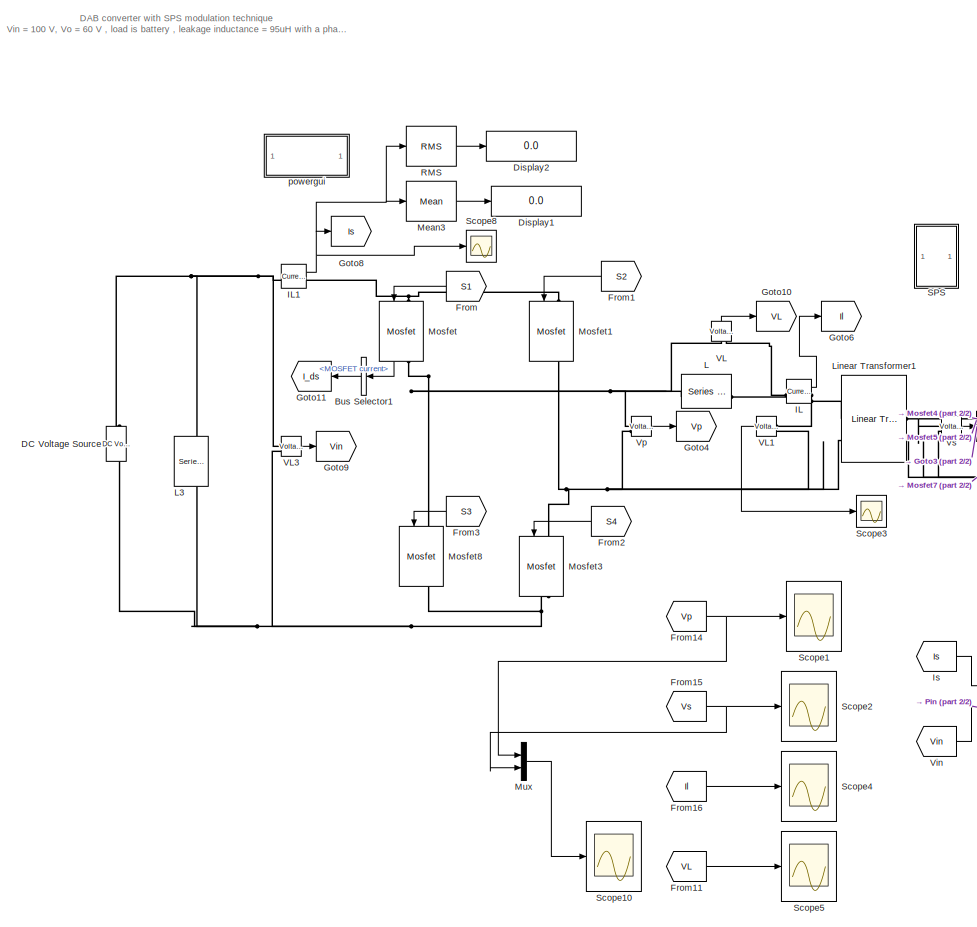
[diagram: root canvas - part 1/2, left side, full height]
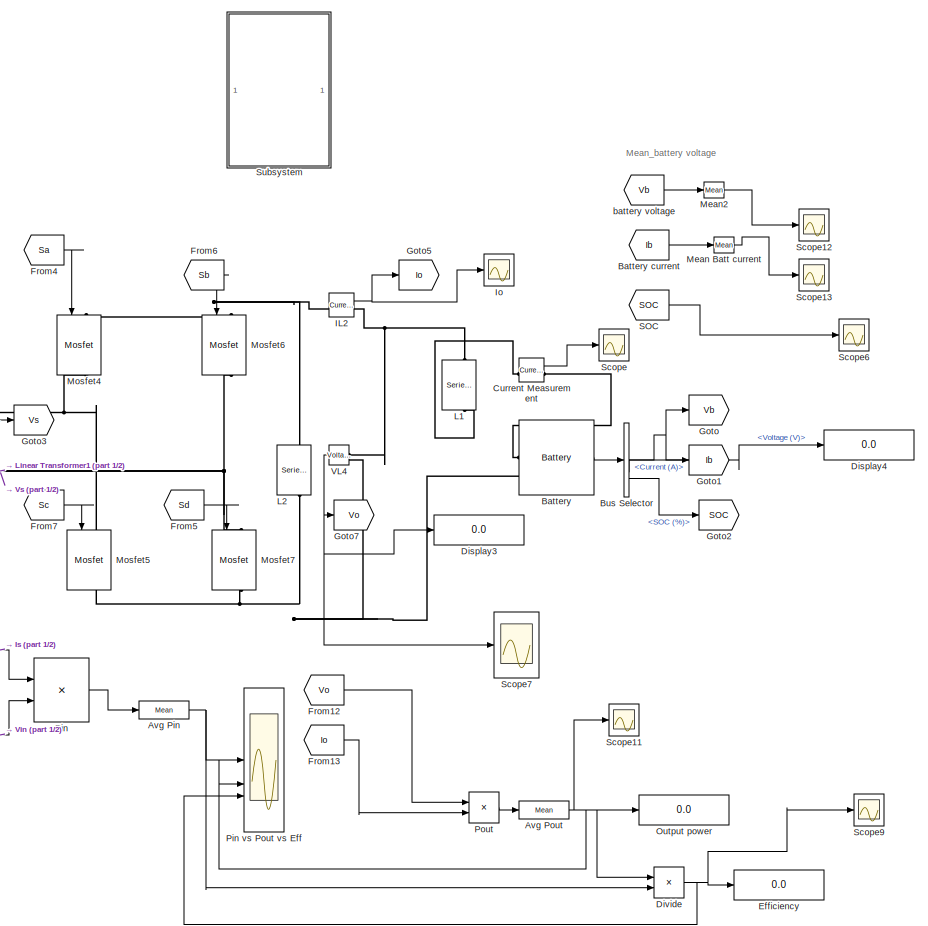
[diagram: root canvas - part 2/2, right side, full height]
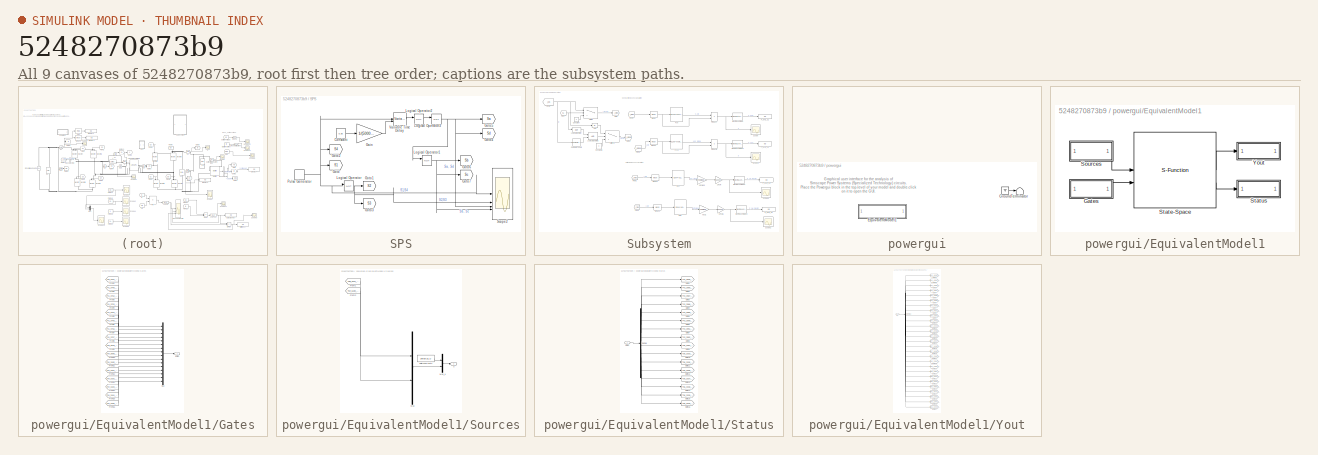
[diagram: thumbnail index - all 9 canvases of the model, root first then tree order]
MODEL slx_5248270873b9
KIND model
CONFIG AbsTol = auto
CONFIG EnableMultiTasking = off
CONFIG FixedStep = auto
CONFIG MaxStep = auto
CONFIG MinStep = auto
CONFIG RelTol = 1e-3
CONFIG SampleTimeConstraint = Unconstrained
CONFIG SolverName = VariableStepAuto
CONFIG StartTime = 0.0
CONFIG StopTime = 0.3
BLOCK [Reference] Avg Pin  REF=spsMeanLib/Mean
  LibrarySourceBlock = sps_lib/Sensors and Measurements/Mean
  SourceBlock = spsMeanLib/Mean
  SourceType = Mean
BLOCK [Reference] Avg Pout  REF=spsMeanLib/Mean
  LibrarySourceBlock = sps_lib/Sensors and Measurements/Mean
  SourceBlock = spsMeanLib/Mean
  SourceType = Mean
BLOCK [Reference] Battery  REF=spsBatteryLib/Battery
  SourceBlock = spsBatteryLib/Battery
  SourceType = Battery
BLOCK [From] Battery current
  GotoTag = Ib
  TagVisibility = global
BLOCK [BusSelector] Bus Selector
  OutputSignals = Voltage (V),Current (A),SOC (%)
BLOCK [BusSelector] Bus Selector1
  NameLocation = top
  OutputSignals = MOSFET current
BLOCK [Reference] Current Measurement  REF=spsCurrentMeasurementLib/Current Measurement
  LibrarySourceBlock = sps_lib/Sensors and Measurements/Current Measurement
  SourceBlock = spsCurrentMeasurementLib/Current Measurement
  SourceType = Current Measurement
  UserDataPersistent = on
BLOCK [Reference] DC Voltage Source  REF=spsDCVoltageSourceLib/DC Voltage Source
  SourceBlock = spsDCVoltageSourceLib/DC Voltage Source
  SourceType = DC Voltage Source
BLOCK [Display] Display1
  Decimation = 1
BLOCK [Display] Display2
  Decimation = 1
BLOCK [Display] Display3
  Decimation = 1
BLOCK [Display] Display4
  Decimation = 1
BLOCK [Product] Divide
  Inputs = */
BLOCK [Display] Efficiency
  Decimation = 1
BLOCK [From] From
  GotoTag = S1
  NameLocation = top
  TagVisibility = global
BLOCK [From] From1
  GotoTag = S2
  NameLocation = top
  TagVisibility = global
BLOCK [From] From11
  GotoTag = VL
  TagVisibility = global
BLOCK [From] From12
  GotoTag = Vo
  TagVisibility = global
BLOCK [From] From13
  GotoTag = Io
  TagVisibility = global
BLOCK [From] From14
  GotoTag = Vp
  NameLocation = top
  TagVisibility = global
BLOCK [From] From15
  GotoTag = Vs
  TagVisibility = global
BLOCK [From] From16
  GotoTag = Il
  TagVisibility = global
BLOCK [From] From2
  GotoTag = S4
  NameLocation = top
  TagVisibility = global
BLOCK [From] From3
  GotoTag = S3
  NameLocation = top
  TagVisibility = global
BLOCK [From] From4
  GotoTag = Sa
  TagVisibility = global
BLOCK [From] From5
  GotoTag = Sd
  TagVisibility = global
BLOCK [From] From6
  GotoTag = Sb
  TagVisibility = global
BLOCK [From] From7
  GotoTag = Sc
  TagVisibility = global
BLOCK [Goto] Goto
  GotoTag = Vb
  TagVisibility = global
BLOCK [Goto] Goto1
  GotoTag = Ib
  TagVisibility = global
BLOCK [Goto] Goto10
  GotoTag = VL
  TagVisibility = global
BLOCK [Goto] Goto11
  GotoTag = I_ds
  NameLocation = top
BLOCK [Goto] Goto2
  GotoTag = SOC
  TagVisibility = global
BLOCK [Goto] Goto3
  GotoTag = Vs
  TagVisibility = global
BLOCK [Goto] Goto4
  GotoTag = Vp
  TagVisibility = global
BLOCK [Goto] Goto5
  GotoTag = Io
  TagVisibility = global
BLOCK [Goto] Goto6
  GotoTag = Il
  TagVisibility = global
BLOCK [Goto] Goto7
  GotoTag = Vo
  TagVisibility = global
BLOCK [Goto] Goto8
  GotoTag = Is
  TagVisibility = global
BLOCK [Goto] Goto9
  GotoTag = Vin
  TagVisibility = global
BLOCK [Reference] IL  REF=spsCurrentMeasurementLib/Current Measurement
  SourceBlock = spsCurrentMeasurementLib/Current Measurement
  SourceType = Current Measurement
  UserDataPersistent = on
BLOCK [Reference] IL1  REF=spsCurrentMeasurementLib/Current Measurement
  SourceBlock = spsCurrentMeasurementLib/Current Measurement
  SourceType = Current Measurement
  UserDataPersistent = on
BLOCK [Reference] IL2  REF=spsCurrentMeasurementLib/Current Measurement
  SourceBlock = spsCurrentMeasurementLib/Current Measurement
  SourceType = Current Measurement
  UserDataPersistent = on
BLOCK [Scope] Io
  Floating = off
  NumInputPorts = 1
  ScopeSpecificationString = Simulink.scopes.TimeScopeBlockCfg('CurrentConfiguration', extmgr.ConfigurationSet(extmgr.Configuration('Core','General UI',true,'DisplayFullSourceName',false,'ShowMainToolbar',true,'FigureColor','[1 1 1]'),extmgr.Configuration('Sources','WiredSimulink',true,'DataLogging',false,'DataLoggingVariableName','ScopeData1','DataLoggingLimitDataPoints',false,'DataLoggingMaxPoints','5000','DataLoggingDecima...<+2088ch>
BLOCK [From] Is
  GotoTag = Is
  TagVisibility = global
BLOCK [Reference] L  REF=spsSeriesRLCBranchLib/Series RLC Branch
  SourceBlock = spsSeriesRLCBranchLib/Series RLC Branch
  SourceType = Series RLC Branch
BLOCK [Reference] L1  REF=spsSeriesRLCBranchLib/Series RLC Branch
  NameLocation = left
  SourceBlock = spsSeriesRLCBranchLib/Series RLC Branch
  SourceType = Series RLC Branch
BLOCK [Reference] L2  REF=spsSeriesRLCBranchLib/Series RLC Branch
  NameLocation = left
  SourceBlock = spsSeriesRLCBranchLib/Series RLC Branch
  SourceType = Series RLC Branch
BLOCK [Reference] L3  REF=spsSeriesRLCBranchLib/Series RLC Branch
  NameLocation = left
  SourceBlock = spsSeriesRLCBranchLib/Series RLC Branch
  SourceType = Series RLC Branch
BLOCK [Reference] Linear Transformer1  REF=spsLinearTransformerLib/Linear Transformer
  SourceBlock = spsLinearTransformerLib/Linear Transformer
  SourceType = Linear Transformer
BLOCK [Reference] Mean Batt current  REF=spsMeanLib/Mean
  SourceBlock = spsMeanLib/Mean
  SourceType = Mean
BLOCK [Reference] Mean2  REF=spsMeanLib/Mean
  SourceBlock = spsMeanLib/Mean
  SourceType = Mean
BLOCK [Reference] Mean3  REF=spsMeanLib/Mean
  SourceBlock = spsMeanLib/Mean
  SourceType = Mean
BLOCK [Reference] Mosfet  REF=spsMosfetLib/Mosfet
  NameLocation = left
  SourceBlock = spsMosfetLib/Mosfet
  SourceType = Mosfet
BLOCK [Reference] Mosfet1  REF=spsMosfetLib/Mosfet
  NameLocation = left
  SourceBlock = spsMosfetLib/Mosfet
  SourceType = Mosfet
BLOCK [Reference] Mosfet3  REF=spsMosfetLib/Mosfet
  NameLocation = left
  SourceBlock = spsMosfetLib/Mosfet
  SourceType = Mosfet
BLOCK [Reference] Mosfet4  REF=spsMosfetLib/Mosfet
  NameLocation = left
  SourceBlock = spsMosfetLib/Mosfet
  SourceType = Mosfet
BLOCK [Reference] Mosfet5  REF=spsMosfetLib/Mosfet
  NameLocation = left
  SourceBlock = spsMosfetLib/Mosfet
  SourceType = Mosfet
BLOCK [Reference] Mosfet6  REF=spsMosfetLib/Mosfet
  NameLocation = left
  SourceBlock = spsMosfetLib/Mosfet
  SourceType = Mosfet
BLOCK [Reference] Mosfet7  REF=spsMosfetLib/Mosfet
  NameLocation = left
  SourceBlock = spsMosfetLib/Mosfet
  SourceType = Mosfet
BLOCK [Reference] Mosfet8  REF=spsMosfetLib/Mosfet
  NameLocation = left
  SourceBlock = spsMosfetLib/Mosfet
  SourceType = Mosfet
BLOCK [Mux] Mux
  DisplayOption = bar
  Inputs = 2
BLOCK [Display] Output power
  Decimation = 1
BLOCK [Product] Pin
BLOCK [Scope] Pin vs Pout vs Eff 
  Floating = off
  NumInputPorts = 3
BLOCK [Product] Pout
BLOCK [Reference] RMS  REF=spsRMSLib/RMS
  SourceBlock = spsRMSLib/RMS
  SourceType = RMS
BLOCK [From] SOC
  GotoTag = SOC
  TagVisibility = global
BLOCK [SubSystem] SPS
BLOCK [Constant] SPS/Constant
  Value = 0.35
BLOCK [Gain] SPS/Gain
  Gain = 1/(50000*2)
BLOCK [Goto] SPS/Goto
  GotoTag = S1
  TagVisibility = global
BLOCK [Goto] SPS/Goto1
  GotoTag = S2
  TagVisibility = global
BLOCK [Goto] SPS/Goto2
  GotoTag = S4
  TagVisibility = global
BLOCK [Goto] SPS/Goto3
  GotoTag = S3
  TagVisibility = global
BLOCK [Goto] SPS/Goto4
  GotoTag = Sd
  TagVisibility = global
BLOCK [Goto] SPS/Goto5
  GotoTag = Sa
  TagVisibility = global
BLOCK [Goto] SPS/Goto6
  GotoTag = Sb
  TagVisibility = global
BLOCK [Goto] SPS/Goto7
  GotoTag = Sc
  TagVisibility = global
BLOCK [Logic] SPS/Logical Operator
  AllPortsSameDT = off
  Operator = NOT
  OutDataTypeStr = boolean
BLOCK [Logic] SPS/Logical Operator1
  AllPortsSameDT = off
  Operator = NOT
  OutDataTypeStr = boolean
BLOCK [Logic] SPS/Logical Operator2
  AllPortsSameDT = off
  Operator = NOT
  OutDataTypeStr = boolean
BLOCK [Logic] SPS/Logical Operator3
  AllPortsSameDT = off
  Operator = NOT
  OutDataTypeStr = boolean
BLOCK [DiscretePulseGenerator] SPS/Pulse Generator
  Period = 1/50000
  PulseType = Time based
  PulseWidth = 50
BLOCK [Scope] SPS/Scope2
  Floating = off
  NumInputPorts = 4
BLOCK [VariableTransportDelay] SPS/Variable Time Delay
  MaximumDelay = 10
BLOCK [Scope] Scope
  Floating = off
  NumInputPorts = 1
BLOCK [Scope] Scope1
  Floating = off
  NumInputPorts = 1
BLOCK [Scope] Scope10
  Floating = off
  NumInputPorts = 1
BLOCK [Scope] Scope11
  Floating = off
  NumInputPorts = 1
BLOCK [Scope] Scope12
  Floating = off
  NumInputPorts = 1
BLOCK [Scope] Scope13
  Floating = off
  NumInputPorts = 1
BLOCK [Scope] Scope2
  Floating = off
  NumInputPorts = 1
BLOCK [Scope] Scope3
  Floating = off
  NumInputPorts = 1
BLOCK [Scope] Scope4
  Floating = off
  NumInputPorts = 1
BLOCK [Scope] Scope5
  Floating = off
  NumInputPorts = 1
BLOCK [Scope] Scope6
  Floating = off
  NumInputPorts = 1
BLOCK [Scope] Scope7
  Floating = off
  NumInputPorts = 1
BLOCK [Scope] Scope8
  Floating = off
  NumInputPorts = 1
BLOCK [Scope] Scope9
  Floating = off
  NumInputPorts = 1
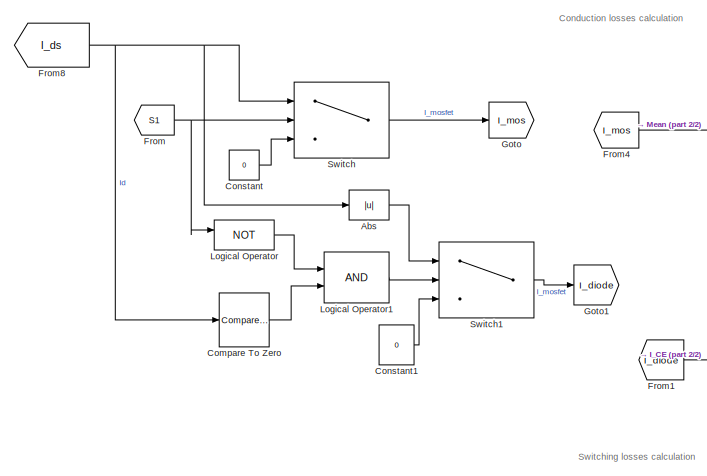
[diagram: Subsystem - part 1/2, top left region]
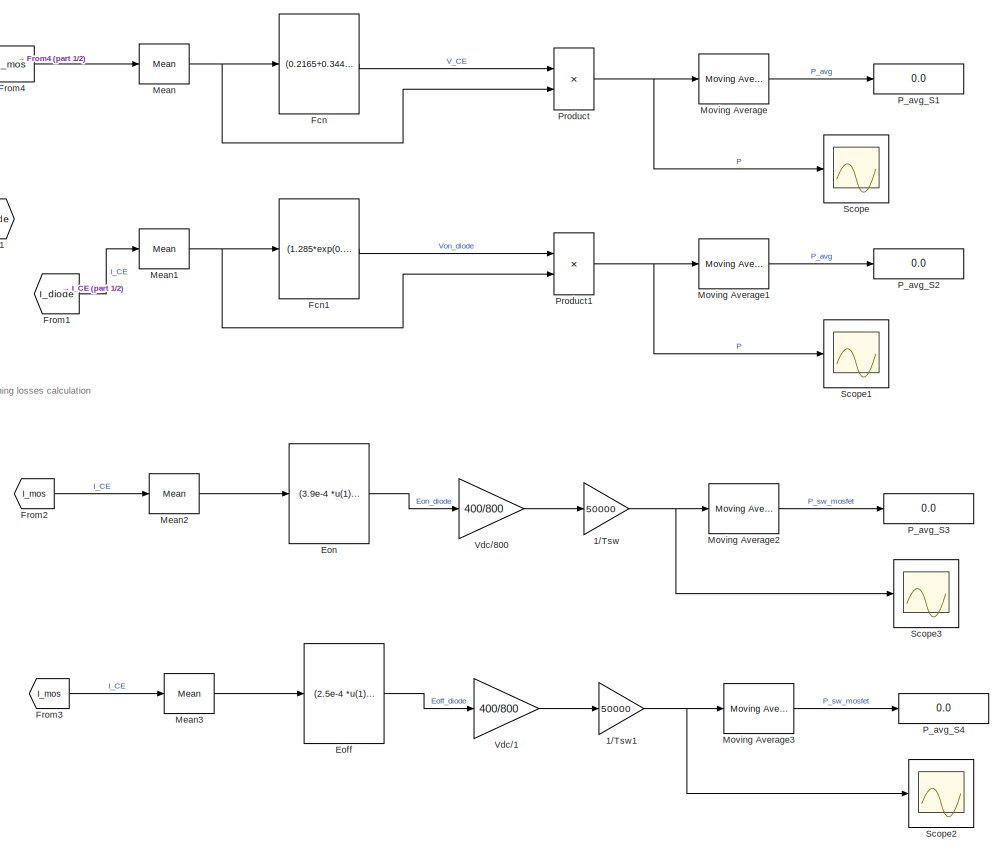
[diagram: Subsystem - part 2/2, right side, full height]
BLOCK [SubSystem] Subsystem
BLOCK [Gain] Subsystem/1//Tsw
  Gain = 50000
BLOCK [Gain] Subsystem/1//Tsw1
  Gain = 50000
BLOCK [Abs] Subsystem/Abs
  SaturateOnIntegerOverflow = off
BLOCK [Reference] Subsystem/Compare To Zero  REF=simulink/Logic and Bit
Operations/Compare
To Zero
  SourceBlock = simulink/Logic and Bit\nOperations/Compare\nTo Zero
  SourceType = Compare To Zero
BLOCK [Constant] Subsystem/Constant
  Value = 0
BLOCK [Constant] Subsystem/Constant1
  Value = 0
BLOCK [Fcn] Subsystem/Eoff
  Expr = (2.5e-4 *u(1)^2)
BLOCK [Fcn] Subsystem/Eon
  Expr = (3.9e-4 *u(1)^2)+(9.4e-3 *u(1))
BLOCK [Fcn] Subsystem/Fcn
  Expr = (0.2165+0.3449)*exp(0.03993*u(1))
BLOCK [Fcn] Subsystem/Fcn1
  Expr = (1.285*exp(0.0139*u(1)))-(0.785*exp(-0.1286*u(1)))
BLOCK [From] Subsystem/From
  GotoTag = S1
  TagVisibility = global
BLOCK [From] Subsystem/From1
  GotoTag = I_diode
BLOCK [From] Subsystem/From2
  GotoTag = I_mos
BLOCK [From] Subsystem/From3
  GotoTag = I_mos
BLOCK [From] Subsystem/From4
  GotoTag = I_mos
BLOCK [From] Subsystem/From8
  GotoTag = I_ds
  NameLocation = top
BLOCK [Goto] Subsystem/Goto
  GotoTag = I_mos
BLOCK [Goto] Subsystem/Goto1
  GotoTag = I_diode
BLOCK [Logic] Subsystem/Logical Operator
  AllPortsSameDT = off
  Operator = NOT
  OutDataTypeStr = boolean
BLOCK [Logic] Subsystem/Logical Operator1
  AllPortsSameDT = off
  OutDataTypeStr = boolean
BLOCK [Reference] Subsystem/Mean  REF=spsMeanLib/Mean
  LibrarySourceBlock = sps_lib/Sensors and Measurements/Mean
  SourceBlock = spsMeanLib/Mean
  SourceType = Mean
BLOCK [Reference] Subsystem/Mean1  REF=spsMeanLib/Mean
  LibrarySourceBlock = sps_lib/Sensors and Measurements/Mean
  SourceBlock = spsMeanLib/Mean
  SourceType = Mean
BLOCK [Reference] Subsystem/Mean2  REF=spsMeanLib/Mean
  LibrarySourceBlock = sps_lib/Sensors and Measurements/Mean
  SourceBlock = spsMeanLib/Mean
  SourceType = Mean
BLOCK [Reference] Subsystem/Mean3  REF=spsMeanLib/Mean
  LibrarySourceBlock = sps_lib/Sensors and Measurements/Mean
  SourceBlock = spsMeanLib/Mean
  SourceType = Mean
BLOCK [Reference] Subsystem/Moving Average  REF=eeGeneralControl/Moving Average
  LibrarySourceBlock = ee_sl_lib/General Control/Moving Average
  SourceBlock = eeGeneralControl/Moving Average
  SourceType = Moving Average
BLOCK [Reference] Subsystem/Moving Average1  REF=eeGeneralControl/Moving Average
  LibrarySourceBlock = ee_sl_lib/General Control/Moving Average
  SourceBlock = eeGeneralControl/Moving Average
  SourceType = Moving Average
BLOCK [Reference] Subsystem/Moving Average2  REF=eeGeneralControl/Moving Average
  LibrarySourceBlock = ee_sl_lib/General Control/Moving Average
  SourceBlock = eeGeneralControl/Moving Average
  SourceType = Moving Average
BLOCK [Reference] Subsystem/Moving Average3  REF=eeGeneralControl/Moving Average
  LibrarySourceBlock = ee_sl_lib/General Control/Moving Average
  SourceBlock = eeGeneralControl/Moving Average
  SourceType = Moving Average
BLOCK [Display] Subsystem/P_avg_S1
  Decimation = 1
BLOCK [Display] Subsystem/P_avg_S2
  Decimation = 1
BLOCK [Display] Subsystem/P_avg_S3
  Decimation = 1
BLOCK [Display] Subsystem/P_avg_S4
  Decimation = 1
BLOCK [Product] Subsystem/Product
BLOCK [Product] Subsystem/Product1
BLOCK [Scope] Subsystem/Scope
  Floating = off
  NumInputPorts = 1
BLOCK [Scope] Subsystem/Scope1
  Floating = off
  NumInputPorts = 1
BLOCK [Scope] Subsystem/Scope2
  Floating = off
  NumInputPorts = 1
BLOCK [Scope] Subsystem/Scope3
  Floating = off
  NumInputPorts = 1
BLOCK [Switch] Subsystem/Switch
  Criteria = u2 > Threshold
  InputSameDT = off
  SaturateOnIntegerOverflow = off
  Threshold = 0.5
BLOCK [Switch] Subsystem/Switch1
  Criteria = u2 > Threshold
  InputSameDT = off
  SaturateOnIntegerOverflow = off
BLOCK [Gain] Subsystem/Vdc//1
  Gain = 400/800
BLOCK [Gain] Subsystem/Vdc//800
  Gain = 400/800
BLOCK [Reference] VL  REF=spsVoltageMeasurementLib/Voltage Measurement
  NameLocation = right
  SourceBlock = spsVoltageMeasurementLib/Voltage Measurement
  SourceType = Voltage Measurement
  UserDataPersistent = on
BLOCK [Reference] VL1  REF=spsVoltageMeasurementLib/Voltage Measurement
  NameLocation = top
  SourceBlock = spsVoltageMeasurementLib/Voltage Measurement
  SourceType = Voltage Measurement
  UserDataPersistent = on
BLOCK [Reference] VL3  REF=spsVoltageMeasurementLib/Voltage Measurement
  SourceBlock = spsVoltageMeasurementLib/Voltage Measurement
  SourceType = Voltage Measurement
  UserDataPersistent = on
BLOCK [Reference] VL4  REF=spsVoltageMeasurementLib/Voltage Measurement
  NameLocation = top
  SourceBlock = spsVoltageMeasurementLib/Voltage Measurement
  SourceType = Voltage Measurement
  UserDataPersistent = on
BLOCK [From] Vin
  GotoTag = Vin
  TagVisibility = global
BLOCK [Reference] Vp  REF=spsVoltageMeasurementLib/Voltage Measurement
  SourceBlock = spsVoltageMeasurementLib/Voltage Measurement
  SourceType = Voltage Measurement
  UserDataPersistent = on
BLOCK [Reference] Vs  REF=spsVoltageMeasurementLib/Voltage Measurement
  SourceBlock = spsVoltageMeasurementLib/Voltage Measurement
  SourceType = Voltage Measurement
  UserDataPersistent = on
BLOCK [From] battery voltage
  GotoTag = Vb
  TagVisibility = global
BLOCK [SubSystem] powergui
  AncestorBlock = spspowerguiLib/powergui
  InitFcn = powergui( 'InitFcn_Callback' , gcb , 0 , [ ] );
  OpenFcn = sps_rtmsupport('OpenFcn',gcbh)
  PreSaveFcn = powergui( 'PreSaveFcn_Callback' , gcb , [ ] , [ ] );
  Priority = 1
BLOCK [SubSystem] powergui/EquivalentModel1
BLOCK [SubSystem] powergui/EquivalentModel1/Gates
BLOCK [From] powergui/EquivalentModel1/Gates/From1
  GotoTag = T40_3701_2679775890096
  TagVisibility = global
BLOCK [From] powergui/EquivalentModel1/Gates/From10
  GotoTag = T34_3098_1866170587201
  TagVisibility = global
BLOCK [From] powergui/EquivalentModel1/Gates/From11
  GotoTag = T34_3100_1864015686096
  TagVisibility = global
BLOCK [From] powergui/EquivalentModel1/Gates/From12
  GotoTag = T34_3101_1863015543779
  TagVisibility = global
BLOCK [From] powergui/EquivalentModel1/Gates/From13
  GotoTag = T34_3102_1862066940285
  TagVisibility = global
BLOCK [From] powergui/EquivalentModel1/Gates/From14
  GotoTag = T34_3103_1861169875615
  TagVisibility = global
BLOCK [From] powergui/EquivalentModel1/Gates/From15
  GotoTag = T34_3104_1860324349768
  TagVisibility = global
BLOCK [From] powergui/EquivalentModel1/Gates/From16
  GotoTag = T34_3105_1859530362745
  TagVisibility = global
BLOCK [From] powergui/EquivalentModel1/Gates/From2
  GotoTag = T41_3750_2817821946598
  TagVisibility = global
BLOCK [From] powergui/EquivalentModel1/Gates/From3
  GotoTag = T41_3752_2814763869524
  TagVisibility = global
BLOCK [From] powergui/EquivalentModel1/Gates/From4
  GotoTag = T41_3753_2813298940256
  TagVisibility = global
BLOCK [From] powergui/EquivalentModel1/Gates/From5
  GotoTag = T41_3754_2811876750500
  TagVisibility = global
BLOCK [From] powergui/EquivalentModel1/Gates/From6
  GotoTag = T41_3755_2810497300256
  TagVisibility = global
BLOCK [From] powergui/EquivalentModel1/Gates/From7
  GotoTag = T41_3756_2809160589524
  TagVisibility = global
BLOCK [From] powergui/EquivalentModel1/Gates/From8
  GotoTag = T41_3757_2807866618305
  TagVisibility = global
BLOCK [From] powergui/EquivalentModel1/Gates/From9
  GotoTag = T33_3049_1785696258201
  TagVisibility = global
BLOCK [Mux] powergui/EquivalentModel1/Gates/Mux
  DisplayOption = bar
  Inputs = [1 1 1 1 1 1 1 1 1 1 1 1 1 1 1 1]
BLOCK [Outport] powergui/EquivalentModel1/Gates/gates
  VectorParamsAs1DForOutWhenUnconnected = off
BLOCK [SubSystem] powergui/EquivalentModel1/Sources
BLOCK [From] powergui/EquivalentModel1/Sources/From1
  GotoTag = T38_3441_2522552993805
  TagVisibility = global
BLOCK [From] powergui/EquivalentModel1/Sources/From2
  GotoTag = T54_5130_4857705828176
  TagVisibility = global
BLOCK [Mux] powergui/EquivalentModel1/Sources/Mux
  DisplayOption = bar
  Inputs = [1 1]
BLOCK [Mux] powergui/EquivalentModel1/Sources/Mux_u
  DisplayOption = bar
  Inputs = [16 2]
BLOCK [Constant] powergui/EquivalentModel1/Sources/SwitchCurrents
  NameLocation = top
  Value = zeros(16,1)
BLOCK [Outport] powergui/EquivalentModel1/Sources/u
  VectorParamsAs1DForOutWhenUnconnected = off
BLOCK [S-Function] powergui/EquivalentModel1/State-Space
  EnableBusSupport = off
  FunctionName = sfun_spssw_discc
  Parameters = S.Ts,S.A, S.B, S.C, S.D, S.x0, S.EnableUseOfTLC,S.SwitchResistance ,S.SwitchType, S.SwitchGateInitialValue, S.OutputsToResetToZero, S.TBEON,S.SaveMatrices,S.BufferSize
  SFcnIsStateOwnerBlock = off
  SFunctionDeploymentMode = off
BLOCK [SubSystem] powergui/EquivalentModel1/Status
BLOCK [Demux] powergui/EquivalentModel1/Status/Demux
  Outputs = [1 1 1 1 1 1 1 1 1 1 1 1 1 1 1 1]
BLOCK [Goto] powergui/EquivalentModel1/Status/Goto1
  GotoTag = T42_3936_3175280934053
  TagVisibility = global
BLOCK [Goto] powergui/EquivalentModel1/Status/Goto10
  GotoTag = T36_3333_2305466190754
  TagVisibility = global
BLOCK [Goto] powergui/EquivalentModel1/Status/Goto11
  GotoTag = T36_3335_2302816934373
  TagVisibility = global
BLOCK [Goto] powergui/EquivalentModel1/Status/Goto12
  GotoTag = T36_3336_2301565319516
  TagVisibility = global
BLOCK [Goto] powergui/EquivalentModel1/Status/Goto13
  GotoTag = T36_3337_2300362380214
  TagVisibility = global
BLOCK [Goto] powergui/EquivalentModel1/Status/Goto14
  GotoTag = T36_3338_2299208116468
  TagVisibility = global
BLOCK [Goto] powergui/EquivalentModel1/Status/Goto15
  GotoTag = T36_3339_2298102528278
  TagVisibility = global
BLOCK [Goto] powergui/EquivalentModel1/Status/Goto16
  GotoTag = T36_3340_2297045615643
  TagVisibility = global
BLOCK [Goto] powergui/EquivalentModel1/Status/Goto2
  GotoTag = T43_3985_3337750263931
  TagVisibility = global
BLOCK [Goto] powergui/EquivalentModel1/Status/Goto3
  GotoTag = T43_3987_3334323514873
  TagVisibility = global
BLOCK [Goto] powergui/EquivalentModel1/Status/Goto4
  GotoTag = T43_3988_3332671267785
  TagVisibility = global
BLOCK [Goto] powergui/EquivalentModel1/Status/Goto5
  GotoTag = T43_3989_3331059772326
  TagVisibility = global
BLOCK [Goto] powergui/EquivalentModel1/Status/Goto6
  GotoTag = T43_3990_3329489028494
  TagVisibility = global
BLOCK [Goto] powergui/EquivalentModel1/Status/Goto7
  GotoTag = T43_3991_3327959036290
  TagVisibility = global
BLOCK [Goto] powergui/EquivalentModel1/Status/Goto8
  GotoTag = T43_3992_3326469795714
  TagVisibility = global
BLOCK [Goto] powergui/EquivalentModel1/Status/Goto9
  GotoTag = T35_3284_2196365481983
  TagVisibility = global
BLOCK [Inport] powergui/EquivalentModel1/Status/status
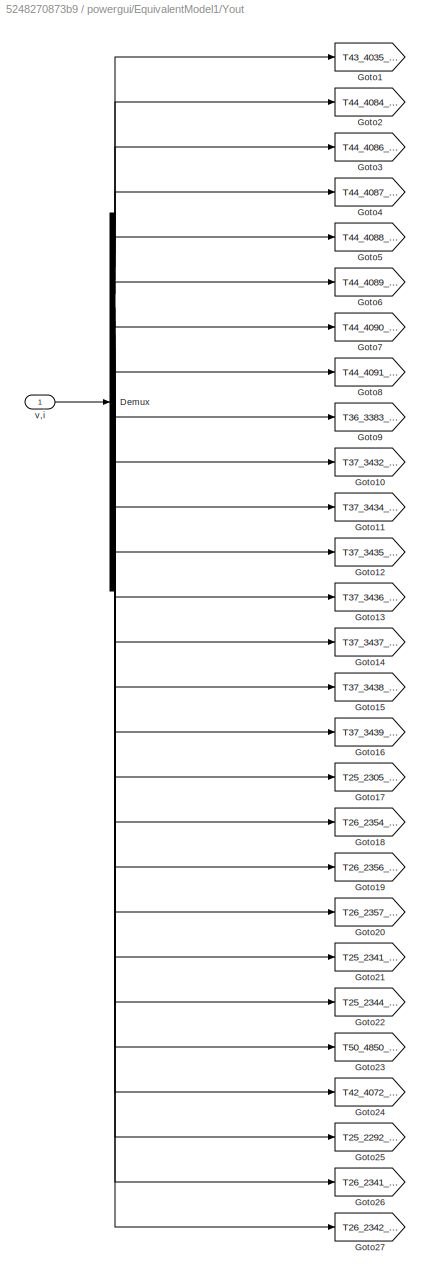
BLOCK [SubSystem] powergui/EquivalentModel1/Yout
BLOCK [Demux] powergui/EquivalentModel1/Yout/Demux
  Outputs = [1 1 1 1 1 1 1 1 1 1 1 1 1 1 1 1 1 1 1 1 1 1 1 1 1 1 1]
BLOCK [Goto] powergui/EquivalentModel1/Yout/Goto1
  GotoTag = T43_4035_3250881152049
  TagVisibility = global
BLOCK [Goto] powergui/EquivalentModel1/Yout/Goto10
  GotoTag = T37_3432_2372636911471
  TagVisibility = global
BLOCK [Goto] powergui/EquivalentModel1/Yout/Goto11
  GotoTag = T37_3434_2369846858138
  TagVisibility = global
BLOCK [Goto] powergui/EquivalentModel1/Yout/Goto12
  GotoTag = T37_3435_2368522871471
  TagVisibility = global
BLOCK [Goto] powergui/EquivalentModel1/Yout/Goto13
  GotoTag = T37_3436_2367246244805
  TagVisibility = global
BLOCK [Goto] powergui/EquivalentModel1/Yout/Goto14
  GotoTag = T37_3437_2366016978138
  TagVisibility = global
BLOCK [Goto] powergui/EquivalentModel1/Yout/Goto15
  GotoTag = T37_3438_2364835071471
  TagVisibility = global
BLOCK [Goto] powergui/EquivalentModel1/Yout/Goto16
  GotoTag = T37_3439_2363700524805
  TagVisibility = global
BLOCK [Goto] powergui/EquivalentModel1/Yout/Goto17
  GotoTag = T25_2305_1106736245400
  TagVisibility = global
BLOCK [Goto] powergui/EquivalentModel1/Yout/Goto18
  GotoTag = T26_2354_1178251504262
  TagVisibility = global
BLOCK [Goto] powergui/EquivalentModel1/Yout/Goto19
  GotoTag = T26_2356_1176711661554
  TagVisibility = global
BLOCK [Goto] powergui/EquivalentModel1/Yout/Goto2
  GotoTag = T44_4084_3419739545264
  TagVisibility = global
BLOCK [Goto] powergui/EquivalentModel1/Yout/Goto20
  GotoTag = T26_2357_1176010435585
  TagVisibility = global
BLOCK [Goto] powergui/EquivalentModel1/Yout/Goto21
  GotoTag = T25_2341_1145625465000
  TagVisibility = global
BLOCK [Goto] powergui/EquivalentModel1/Yout/Goto22
  GotoTag = T25_2344_1151363528100
  TagVisibility = global
BLOCK [Goto] powergui/EquivalentModel1/Yout/Goto23
  GotoTag = T50_4850_4622805642959
  TagVisibility = global
BLOCK [Goto] powergui/EquivalentModel1/Yout/Goto24
  GotoTag = T42_4072_3278719365070
  TagVisibility = global
BLOCK [Goto] powergui/EquivalentModel1/Yout/Goto25
  GotoTag = T25_2292_1103307766667
  TagVisibility = global
BLOCK [Goto] powergui/EquivalentModel1/Yout/Goto26
  GotoTag = T26_2341_1175416109062
  TagVisibility = global
BLOCK [Goto] powergui/EquivalentModel1/Yout/Goto27
  GotoTag = T26_2342_1174644566046
  TagVisibility = global
BLOCK [Goto] powergui/EquivalentModel1/Yout/Goto3
  GotoTag = T44_4086_3416212239049
  TagVisibility = global
BLOCK [Goto] powergui/EquivalentModel1/Yout/Goto4
  GotoTag = T44_4087_3414508324123
  TagVisibility = global
BLOCK [Goto] powergui/EquivalentModel1/Yout/Goto5
  GotoTag = T44_4088_3412844234651
  TagVisibility = global
BLOCK [Goto] powergui/EquivalentModel1/Yout/Goto6
  GotoTag = T44_4089_3411219970634
  TagVisibility = global
BLOCK [Goto] powergui/EquivalentModel1/Yout/Goto7
  GotoTag = T44_4090_3409635532072
  TagVisibility = global
BLOCK [Goto] powergui/EquivalentModel1/Yout/Goto8
  GotoTag = T44_4091_3408090918964
  TagVisibility = global
BLOCK [Goto] powergui/EquivalentModel1/Yout/Goto9
  GotoTag = T36_3383_2255666003135
  TagVisibility = global
BLOCK [Inport] powergui/EquivalentModel1/Yout/v,i
BLOCK [Ground] powergui/Ground
BLOCK [Terminator] powergui/Terminator
ANNOTATION (root): DAB converter with SPS modulation technique Vin = 100 V, Vo = 60 V , load is battery , leakage inductance = 95uH with a phase shift of 63 degrees
ANNOTATION (root): Mean_battery voltage
ANNOTATION Subsystem: Conduction losses calculation
ANNOTATION Subsystem: Switching losses calculation
ANNOTATION powergui: Graphical user interface for the analysis of Simscape Power Systems (Specialized Technology) circuits. Place the Powergui block in the top-level of your model and double-click on it to open the GUI.
NET Avg Pin:1 -> Divide:2, Pin vs Pout vs Eff :1
NET Avg Pout:1 -> Divide:1, Output power:1, Pin vs Pout vs Eff :2, Scope11:1
LINE Battery current:1 -> Mean Batt current:1
LINE Battery:1 -> Bus Selector:1
LINE Bus Selector1:1 -> Goto11:1
NET Bus Selector:1 -> Display4:1, Goto:1
LINE Bus Selector:2 -> Goto1:1
LINE Bus Selector:3 -> Goto2:1
LINE Current Measurement:1 -> Scope:1
NET Divide:1 -> Efficiency:1, Pin vs Pout vs Eff :3, Scope9:1
LINE From11:1 -> Scope5:1
LINE From12:1 -> Pout:1
LINE From13:1 -> Pout:2
NET From14:1 -> Mux:1, Scope1:1
NET From15:1 -> Mux:2, Scope2:1
LINE From16:1 -> Scope4:1
LINE From1:1 -> Mosfet1:1
LINE From2:1 -> Mosfet3:1
LINE From3:1 -> Mosfet8:1
LINE From4:1 -> Mosfet4:1
LINE From5:1 -> Mosfet7:1
LINE From6:1 -> Mosfet6:1
LINE From7:1 -> Mosfet5:1
LINE From:1 -> Mosfet:1
NET IL1:1 -> Goto8:1, Mean3:1, RMS:1, Scope8:1
NET IL2:1 -> Goto5:1, Io:1
LINE IL:1 -> Goto6:1
LINE Is:1 -> Pin:1
LINE Mean Batt current:1 -> Scope13:1
LINE Mean2:1 -> Scope12:1
LINE Mean3:1 -> Display1:1
LINE Mosfet:1 -> Bus Selector1:1
LINE Mux:1 -> Scope10:1
LINE Pin:1 -> Avg Pin:1
LINE Pout:1 -> Avg Pout:1
LINE RMS:1 -> Display2:1
LINE SOC:1 -> Scope6:1
LINE SPS/Constant:1 -> SPS/Gain:1
LINE SPS/Gain:1 -> SPS/Variable Time Delay:2
NET SPS/Logical Operator1:1 -> SPS/Goto6:1, SPS/Goto7:1, SPS/Scope2:4
LINE SPS/Logical Operator2:1 -> SPS/Logical Operator3:1
NET SPS/Logical Operator3:1 -> SPS/Goto4:1, SPS/Goto5:1, SPS/Logical Operator1:1, SPS/Scope2:3
NET SPS/Logical Operator:1 -> SPS/Goto1:1, SPS/Goto3:1, SPS/Scope2:2
NET SPS/Pulse Generator:1 -> SPS/Goto2:1, SPS/Goto:1, SPS/Logical Operator:1, SPS/Scope2:1, SPS/Variable Time Delay:1
LINE SPS/Variable Time Delay:1 -> SPS/Logical Operator2:1
NET Subsystem/1//Tsw1:1 -> Subsystem/Moving Average3:1, Subsystem/Scope2:1
NET Subsystem/1//Tsw:1 -> Subsystem/Moving Average2:1, Subsystem/Scope3:1
LINE Subsystem/Abs:1 -> Subsystem/Switch1:1
LINE Subsystem/Compare To Zero:1 -> Subsystem/Logical Operator1:2
LINE Subsystem/Constant1:1 -> Subsystem/Switch1:3
LINE Subsystem/Constant:1 -> Subsystem/Switch:3
LINE Subsystem/Eoff:1 -> Subsystem/Vdc//1:1
LINE Subsystem/Eon:1 -> Subsystem/Vdc//800:1
LINE Subsystem/Fcn1:1 -> Subsystem/Product1:1
LINE Subsystem/Fcn:1 -> Subsystem/Product:1
LINE Subsystem/From1:1 -> Subsystem/Mean1:1
LINE Subsystem/From2:1 -> Subsystem/Mean2:1
LINE Subsystem/From3:1 -> Subsystem/Mean3:1
LINE Subsystem/From4:1 -> Subsystem/Mean:1
NET Subsystem/From8:1 -> Subsystem/Abs:1, Subsystem/Compare To Zero:1, Subsystem/Switch:1
NET Subsystem/From:1 -> Subsystem/Logical Operator:1, Subsystem/Switch:2
LINE Subsystem/Logical Operator1:1 -> Subsystem/Switch1:2
LINE Subsystem/Logical Operator:1 -> Subsystem/Logical Operator1:1
NET Subsystem/Mean1:1 -> Subsystem/Fcn1:1, Subsystem/Product1:2
LINE Subsystem/Mean2:1 -> Subsystem/Eon:1
LINE Subsystem/Mean3:1 -> Subsystem/Eoff:1
NET Subsystem/Mean:1 -> Subsystem/Fcn:1, Subsystem/Product:2
LINE Subsystem/Moving Average1:1 -> Subsystem/P_avg_S2:1
LINE Subsystem/Moving Average2:1 -> Subsystem/P_avg_S3:1
LINE Subsystem/Moving Average3:1 -> Subsystem/P_avg_S4:1
LINE Subsystem/Moving Average:1 -> Subsystem/P_avg_S1:1
NET Subsystem/Product1:1 -> Subsystem/Moving Average1:1, Subsystem/Scope1:1
NET Subsystem/Product:1 -> Subsystem/Moving Average:1, Subsystem/Scope:1
LINE Subsystem/Switch1:1 -> Subsystem/Goto1:1
LINE Subsystem/Switch:1 -> Subsystem/Goto:1
LINE Subsystem/Vdc//1:1 -> Subsystem/1//Tsw1:1
LINE Subsystem/Vdc//800:1 -> Subsystem/1//Tsw:1
LINE VL1:1 -> Scope3:1
LINE VL3:1 -> Goto9:1
NET VL4:1 -> Display3:1, Goto7:1, Scope7:1
LINE VL:1 -> Goto10:1
LINE Vin:1 -> Pin:2
LINE Vp:1 -> Goto4:1
LINE Vs:1 -> Goto3:1
LINE battery voltage:1 -> Mean2:1
PLINE Battery:LConn1 -- Current Measurement:RConn1
PNET net1: Battery:LConn2 -- L2:RConn1 -- Mosfet5:RConn1 -- Mosfet7:RConn1 -- VL4:LConn2
PLINE Current Measurement:LConn1 -- L1:RConn1
PNET net2: DC Voltage Source:LConn1 -- L3:RConn1 -- Mosfet3:RConn1 -- Mosfet8:RConn1 -- VL3:LConn2
PNET net3: DC Voltage Source:RConn1 -- IL1:LConn1 -- L3:LConn1 -- VL3:LConn1
PNET net4: IL1:RConn1 -- Mosfet1:LConn1 -- Mosfet:LConn1
PNET net5: IL2:LConn1 -- L2:LConn1 -- Mosfet4:LConn1 -- Mosfet6:LConn1
PNET net6: IL2:RConn1 -- L1:LConn1 -- VL4:LConn1
PNET net7: IL:LConn1 -- L:RConn1 -- VL:LConn2
PNET net8: IL:RConn1 -- Linear Transformer1:LConn1 -- VL1:LConn1
PNET net9: L:LConn1 -- Mosfet8:LConn1 -- Mosfet:RConn1 -- VL:LConn1 -- Vp:LConn1
PNET net10: Linear Transformer1:LConn2 -- Mosfet1:RConn1 -- Mosfet3:LConn1 -- VL1:LConn2 -- Vp:LConn2
PNET net11: Linear Transformer1:RConn1 -- Mosfet4:RConn1 -- Mosfet5:LConn1 -- Vs:LConn1
PNET net12: Linear Transformer1:RConn2 -- Mosfet6:RConn1 -- Mosfet7:LConn1 -- Vs:LConn2
note: NET lines group one-source signal fan-out (src -> all destinations, sorted); 1:1 wires keep LINE; PNET lines group multi-terminal physical nets as a canonical sorted terminal list (undirected conserving connections); 2-terminal nets keep the pairwise PLINE form
